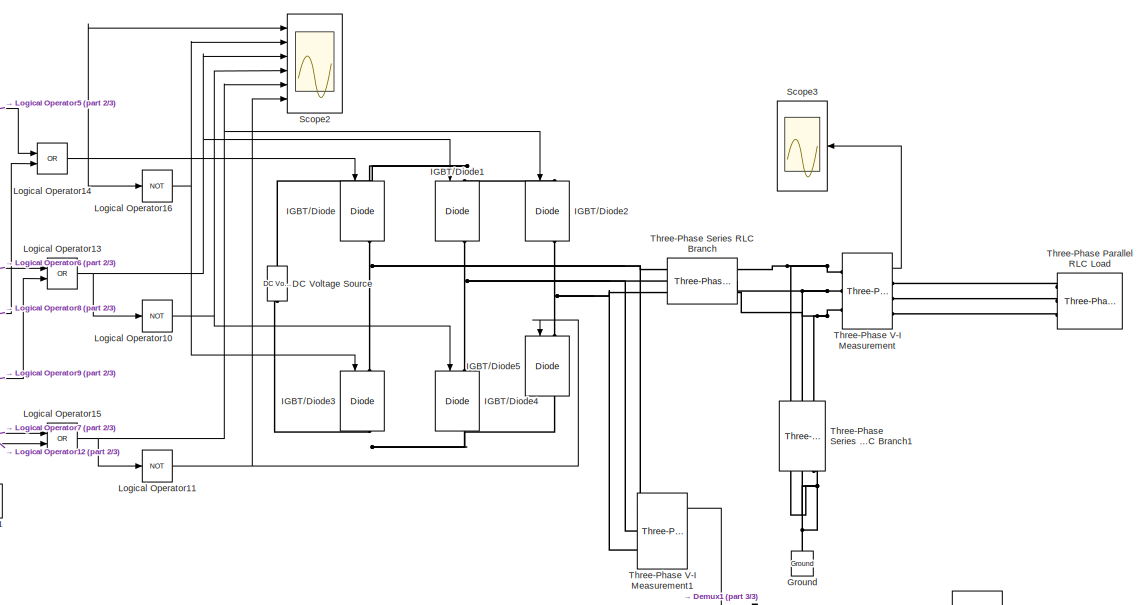
[diagram: root canvas - part 1/3, right side, full height]
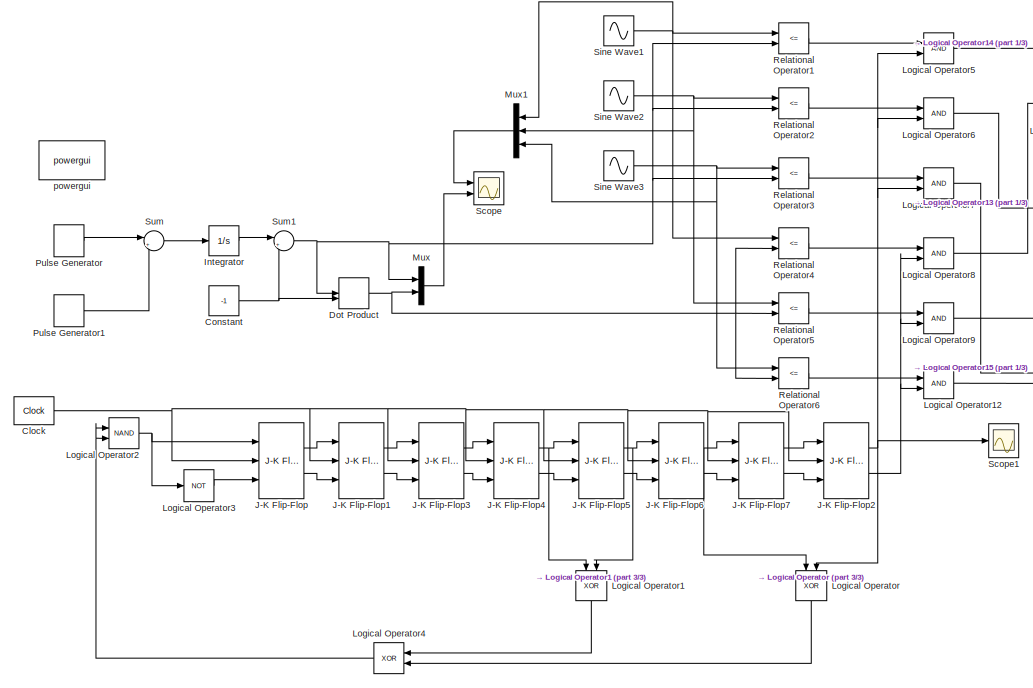
[diagram: root canvas - part 2/3, left side, full height]
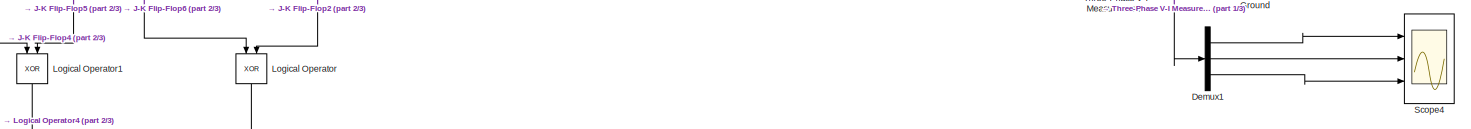
[diagram: root canvas - part 3/3, bottom center region]
MODEL slx_b29a6e259848
KIND model
BLOCK [Reference] Clock  REF=simulink_extras/Flip Flops/Clock
  Ports = [0, 1]
  SourceBlock = simulink_extras/Flip Flops/Clock
  SourceType = Digital clock
  period = 1/(3e3)
BLOCK [Constant] Constant
  Value = -1
BLOCK [Reference] DC Voltage Source  REF=powerlib/Electrical
Sources/DC Voltage Source
  Amplitude = 400
  Measurements = None
  Ports = [0, 0, 0, 0, 0, 1, 1]
  SourceBlock = powerlib/Electrical\nSources/DC Voltage Source
  SourceType = DC Voltage Source
BLOCK [Demux] Demux1
  DisplayOption = bar
  Outputs = 3
  Ports = [1, 3]
BLOCK [DotProduct] Dot Product
  OutDataTypeStr = Inherit: Inherit via internal rule
BLOCK [Reference] Ground  REF=powerlib/Elements/Ground
  LConnTagsString = a
  Ports = [0, 0, 0, 0, 0, 1]
  SourceBlock = powerlib/Elements/Ground
  SourceType = Ground
BLOCK [Reference] IGBT//Diode  REF=powerlib/Power
Electronics/IGBT//Diode
  Cs = inf
  Measurements = on
  Ports = [1, 1, 0, 0, 0, 1, 1]
  Ron = 1e-3
  Rs = 1e5
  SourceBlock = powerlib/Power\nElectronics/IGBT//Diode
  SourceType = IGBT/Diode
BLOCK [Reference] IGBT//Diode1  REF=powerlib/Power
Electronics/IGBT//Diode
  Cs = inf
  Measurements = on
  Ports = [1, 1, 0, 0, 0, 1, 1]
  Ron = 1e-3
  Rs = 1e5
  SourceBlock = powerlib/Power\nElectronics/IGBT//Diode
  SourceType = IGBT/Diode
BLOCK [Reference] IGBT//Diode2  REF=powerlib/Power
Electronics/IGBT//Diode
  Cs = inf
  Measurements = on
  Ports = [1, 1, 0, 0, 0, 1, 1]
  Ron = 1e-3
  Rs = 1e5
  SourceBlock = powerlib/Power\nElectronics/IGBT//Diode
  SourceType = IGBT/Diode
BLOCK [Reference] IGBT//Diode3  REF=powerlib/Power
Electronics/IGBT//Diode
  Cs = inf
  Measurements = on
  Ports = [1, 1, 0, 0, 0, 1, 1]
  Ron = 1e-3
  Rs = 1e5
  SourceBlock = powerlib/Power\nElectronics/IGBT//Diode
  SourceType = IGBT/Diode
BLOCK [Reference] IGBT//Diode4  REF=powerlib/Power
Electronics/IGBT//Diode
  Cs = inf
  Measurements = on
  Ports = [1, 1, 0, 0, 0, 1, 1]
  Ron = 1e-3
  Rs = 1e5
  SourceBlock = powerlib/Power\nElectronics/IGBT//Diode
  SourceType = IGBT/Diode
BLOCK [Reference] IGBT//Diode5  REF=powerlib/Power
Electronics/IGBT//Diode
  Cs = inf
  Measurements = on
  Ports = [1, 1, 0, 0, 0, 1, 1]
  Ron = 1e-3
  Rs = 1e5
  SourceBlock = powerlib/Power\nElectronics/IGBT//Diode
  SourceType = IGBT/Diode
BLOCK [Integrator] Integrator
  Ports = [1, 1]
BLOCK [Reference] J-K Flip-Flop  REF=simulink_extras/Flip Flops/J-K
Flip-Flop
  Ports = [3, 2]
  SourceBlock = simulink_extras/Flip Flops/J-K\nFlip-Flop
  SourceType = JKFlipFlop
  initial_condition = 0
BLOCK [Reference] J-K Flip-Flop1  REF=simulink_extras/Flip Flops/J-K
Flip-Flop
  Ports = [3, 2]
  SourceBlock = simulink_extras/Flip Flops/J-K\nFlip-Flop
  SourceType = JKFlipFlop
  initial_condition = 0
BLOCK [Reference] J-K Flip-Flop2  REF=simulink_extras/Flip Flops/J-K
Flip-Flop
  Ports = [3, 2]
  SourceBlock = simulink_extras/Flip Flops/J-K\nFlip-Flop
  SourceType = JKFlipFlop
  initial_condition = 0
BLOCK [Reference] J-K Flip-Flop3  REF=simulink_extras/Flip Flops/J-K
Flip-Flop
  Ports = [3, 2]
  SourceBlock = simulink_extras/Flip Flops/J-K\nFlip-Flop
  SourceType = JKFlipFlop
  initial_condition = 0
BLOCK [Reference] J-K Flip-Flop4  REF=simulink_extras/Flip Flops/J-K
Flip-Flop
  Ports = [3, 2]
  SourceBlock = simulink_extras/Flip Flops/J-K\nFlip-Flop
  SourceType = JKFlipFlop
  initial_condition = 0
BLOCK [Reference] J-K Flip-Flop5  REF=simulink_extras/Flip Flops/J-K
Flip-Flop
  Ports = [3, 2]
  SourceBlock = simulink_extras/Flip Flops/J-K\nFlip-Flop
  SourceType = JKFlipFlop
  initial_condition = 0
BLOCK [Reference] J-K Flip-Flop6  REF=simulink_extras/Flip Flops/J-K
Flip-Flop
  Ports = [3, 2]
  SourceBlock = simulink_extras/Flip Flops/J-K\nFlip-Flop
  SourceType = JKFlipFlop
  initial_condition = 0
BLOCK [Reference] J-K Flip-Flop7  REF=simulink_extras/Flip Flops/J-K
Flip-Flop
  Ports = [3, 2]
  SourceBlock = simulink_extras/Flip Flops/J-K\nFlip-Flop
  SourceType = JKFlipFlop
  initial_condition = 0
BLOCK [Logic] Logical Operator
  AllPortsSameDT = off
  Operator = XOR
  OutDataTypeStr = boolean
  Ports = [2, 1]
BLOCK [Logic] Logical Operator1
  AllPortsSameDT = off
  Operator = XOR
  OutDataTypeStr = boolean
  Ports = [2, 1]
BLOCK [Logic] Logical Operator10
  AllPortsSameDT = off
  Operator = NOT
  OutDataTypeStr = boolean
  Ports = [1, 1]
BLOCK [Logic] Logical Operator11
  AllPortsSameDT = off
  Operator = NOT
  OutDataTypeStr = boolean
  Ports = [1, 1]
BLOCK [Logic] Logical Operator12
  AllPortsSameDT = off
  OutDataTypeStr = boolean
  Ports = [2, 1]
BLOCK [Logic] Logical Operator13
  AllPortsSameDT = off
  Operator = OR
  OutDataTypeStr = boolean
  Ports = [2, 1]
BLOCK [Logic] Logical Operator14
  AllPortsSameDT = off
  Operator = OR
  OutDataTypeStr = boolean
  Ports = [2, 1]
BLOCK [Logic] Logical Operator15
  AllPortsSameDT = off
  Operator = OR
  OutDataTypeStr = boolean
  Ports = [2, 1]
BLOCK [Logic] Logical Operator16
  AllPortsSameDT = off
  Operator = NOT
  OutDataTypeStr = boolean
  Ports = [1, 1]
BLOCK [Logic] Logical Operator2
  AllPortsSameDT = off
  Operator = NAND
  OutDataTypeStr = boolean
  Ports = [2, 1]
BLOCK [Logic] Logical Operator3
  AllPortsSameDT = off
  Operator = NOT
  OutDataTypeStr = boolean
  Ports = [1, 1]
BLOCK [Logic] Logical Operator4
  AllPortsSameDT = off
  Operator = XOR
  OutDataTypeStr = boolean
  Ports = [2, 1]
BLOCK [Logic] Logical Operator5
  AllPortsSameDT = off
  OutDataTypeStr = boolean
  Ports = [2, 1]
BLOCK [Logic] Logical Operator6
  AllPortsSameDT = off
  OutDataTypeStr = boolean
  Ports = [2, 1]
BLOCK [Logic] Logical Operator7
  AllPortsSameDT = off
  OutDataTypeStr = boolean
  Ports = [2, 1]
BLOCK [Logic] Logical Operator8
  AllPortsSameDT = off
  OutDataTypeStr = boolean
  Ports = [2, 1]
BLOCK [Logic] Logical Operator9
  AllPortsSameDT = off
  OutDataTypeStr = boolean
  Ports = [2, 1]
BLOCK [Mux] Mux
  DisplayOption = bar
  Inputs = 2
  Ports = [2, 1]
BLOCK [Mux] Mux1
  DisplayOption = bar
  Inputs = 3
  Ports = [3, 1]
BLOCK [DiscretePulseGenerator] Pulse Generator
  Amplitude = 12000
  Period = 1e-3/3
  Ports = [0, 1]
  PulseType = Time based
  PulseWidth = 50
BLOCK [DiscretePulseGenerator] Pulse Generator1
  Amplitude = -12000
  Period = 1/3e3
  PhaseDelay = 1/6e3
  Ports = [0, 1]
  PulseType = Time based
  PulseWidth = 50
BLOCK [RelationalOperator] Relational Operator1
  InputSameDT = off
  Operator = <=
  OutDataTypeStr = boolean
  Ports = [2, 1]
BLOCK [RelationalOperator] Relational Operator2
  InputSameDT = off
  Operator = <=
  OutDataTypeStr = boolean
  Ports = [2, 1]
BLOCK [RelationalOperator] Relational Operator3
  InputSameDT = off
  Operator = <=
  OutDataTypeStr = boolean
  Ports = [2, 1]
BLOCK [RelationalOperator] Relational Operator4
  InputSameDT = off
  Operator = <=
  OutDataTypeStr = boolean
  Ports = [2, 1]
BLOCK [RelationalOperator] Relational Operator5
  InputSameDT = off
  Operator = <=
  OutDataTypeStr = boolean
  Ports = [2, 1]
BLOCK [RelationalOperator] Relational Operator6
  InputSameDT = off
  Operator = <=
  OutDataTypeStr = boolean
  Ports = [2, 1]
BLOCK [Scope] Scope
  Floating = off
  NumInputPorts = 2
  Ports = [2]
  ShowLegends = off
  YMax = 1.2~1.2
  YMin = -1.2~-0.2
  ZoomMode = xonly
BLOCK [Scope] Scope1
  Floating = off
  MaxDataPoints = 5000000
  NumInputPorts = 1
  Ports = [1]
  SaveName = ScopeData1
  ShowLegends = off
  YMax = 1.2
  YMin = -1.2
  ZoomMode = xonly
BLOCK [Scope] Scope2
  Floating = off
  NumInputPorts = 6
  Ports = [6]
  SaveName = ScopeData2
  ShowLegends = off
  YMax = 1.2~1.2~1.2~1.2~1.2~1.2
  YMin = -0.2~-0.2~-0.2~-0.2~-0.2~-0.2
  ZoomMode = xonly
BLOCK [Scope] Scope3
  Floating = off
  MaxDataPoints = 500000
  NumInputPorts = 1
  Ports = [1]
  SaveName = ScopeData3
  ShowLegends = off
  YMax = 1.2
  YMin = -0.2
  ZoomMode = xonly
BLOCK [Scope] Scope4
  Floating = off
  MaxDataPoints = 500000
  NumInputPorts = 3
  Ports = [3]
  SaveName = ScopeData4
  ShowLegends = off
  YMax = 1.2~1.2~1.2
  YMin = -0.2~-0.2~-0.2
  ZoomMode = xonly
BLOCK [Sin] Sine Wave1
  Frequency = 314
  Ports = [0, 1]
  SampleTime = 0
BLOCK [Sin] Sine Wave2
  Frequency = 314
  Phase = (2*pi)/3
  Ports = [0, 1]
  SampleTime = 0
BLOCK [Sin] Sine Wave3
  Frequency = 314
  Phase = (4*pi)/3
  Ports = [0, 1]
  SampleTime = 0
BLOCK [Sum] Sum
  IconShape = round
  InputSameDT = off
  Inputs = |++
  OutDataTypeStr = Inherit: Inherit via internal rule
  Ports = [2, 1]
  SaturateOnIntegerOverflow = off
BLOCK [Sum] Sum1
  IconShape = round
  InputSameDT = off
  Inputs = |++
  OutDataTypeStr = Inherit: Inherit via internal rule
  Ports = [2, 1]
  SaturateOnIntegerOverflow = off
BLOCK [Reference] Three-Phase Parallel RLC Load  REF=powerlib/Elements/Three-Phase
Parallel RLC Load
  ActivePower = 1e3
  AttributesFormatString = \n
  CapacitivePower = 0
  Configuration = Y (grounded)
  InductivePower = 0
  LConnTagsString = A|B|C
  LoadType = constant Z
  Measurements = None
  NominalFrequency = 50
  NominalVoltage = 400*1.73
  Ports = [0, 0, 0, 0, 0, 3]
  SourceBlock = powerlib/Elements/Three-Phase\nParallel RLC Load
  SourceType = Three-Phase Parallel RLC Load
BLOCK [Reference] Three-Phase Series RLC Branch  REF=powerlib/Elements/Three-Phase
Series RLC Branch
  AttributesFormatString = \n
  BranchType = L
  Capacitance = 1e-6
  Inductance = 10
  LConnTagsString = A|B|C
  Measurements = None
  Ports = [0, 0, 0, 0, 0, 3, 3]
  RConnTagsString = A|B|C
  Resistance = 1
  SourceBlock = powerlib/Elements/Three-Phase\nSeries RLC Branch
  SourceType = Three-Phase Series RLC Branch
BLOCK [Reference] Three-Phase Series RLC Branch1  REF=powerlib/Elements/Three-Phase
Series RLC Branch
  AttributesFormatString = \n
  BranchType = C
  Capacitance = 1e-6
  Inductance = 10
  LConnTagsString = A|B|C
  Measurements = None
  Ports = [0, 0, 0, 0, 0, 3, 3]
  RConnTagsString = A|B|C
  Resistance = 1
  SourceBlock = powerlib/Elements/Three-Phase\nSeries RLC Branch
  SourceType = Three-Phase Series RLC Branch
BLOCK [Reference] Three-Phase V-I Measurement  REF=powerlib/Measurements/Three-Phase
V-I Measurement
  CurrentMeasurement = no
  Ipu = off
  LabelI = Iabc
  LabelV = Vabc
  OutputType = Complex
  PSBequivalent = 0
  Pbase = 100e6
  PhasorSimulation = off
  Ports = [0, 1, 0, 0, 0, 3, 3]
  SetLabelI = off
  SetLabelV = off
  SourceBlock = powerlib/Measurements/Three-Phase\nV-I Measurement
  SourceType = Three-Phase VI Measurement
  Vbase = 500e3
  VoltageMeasurement = phase-to-phase
  Vpu = off
  VpuLL = off
BLOCK [Reference] Three-Phase V-I Measurement1  REF=powerlib/Measurements/Three-Phase
V-I Measurement
  CurrentMeasurement = no
  Ipu = off
  LabelI = Iabc
  LabelV = Vabc
  OutputType = Complex
  PSBequivalent = 0
  Pbase = 100e6
  PhasorSimulation = off
  Ports = [0, 1, 0, 0, 0, 3, 3]
  SetLabelI = off
  SetLabelV = off
  SourceBlock = powerlib/Measurements/Three-Phase\nV-I Measurement
  SourceType = Three-Phase VI Measurement
  Vbase = 500e3
  VoltageMeasurement = phase-to-phase
  Vpu = off
  VpuLL = off
BLOCK [Reference] powergui  REF=powerlib/powergui
  DisableRonSwitches = off
  DisableSnubberDevices = off
  DisableVfSwitches = off
  DisplayEquations = off
  DisplayStyle = 1
  EnableUseOfTLC = off
  ErrMax = 1e-4
  Frange = [0:2:500]
  FreqAxis = off
  FunctionMessages = off
  HookPort = off
  Interpol = off
  Iterations = 50
  MaxFrequency = 1000
  Pbase = 100e6
  Ports = []
  Priority = 1
  ResistiveCurrentMeasurement = off
  RestoreLinks = warning
  RmsSteady = 1
  SPID = off
  SampleTime = 50e-6
  ShowGrid = off
  SolverType = Tustin
  SourceBlock = powerlib/powergui
  SourceType = PSB option menu block
  StartTime = 0.0
  SwTol = 0
  Ts = 0
  UnitsV = kV
  UnitsW = MW
  UserDataPersistent = on
  Xlog = on
  Ylog = off
  ZoomFFT = off
  cycles = 1
  display = off
  echomessages = off
  frequency = 60
  frequencyindice = 0
  frequencyindicesteady = 1
  fundamental = 60
  methode = off
  save = off
  structure = 0
  variable = ZData
  x0status = blocks
NET Clock:1 -> J-K Flip-Flop1:2, J-K Flip-Flop2:2, J-K Flip-Flop3:2, J-K Flip-Flop4:2, J-K Flip-Flop5:2, J-K Flip-Flop6:2, J-K Flip-Flop7:2, J-K Flip-Flop:2
NET Constant:1 -> Dot Product:2, Sum1:2
LINE Demux1:1 -> Scope4:1
LINE Demux1:2 -> Scope4:2
LINE Demux1:3 -> Scope4:3
NET Dot Product:1 -> Mux:2, Relational Operator4:2, Relational Operator5:2, Relational Operator6:2
LINE Integrator:1 -> Sum1:1
LINE J-K Flip-Flop1:1 -> J-K Flip-Flop3:1
LINE J-K Flip-Flop1:2 -> J-K Flip-Flop3:3
NET J-K Flip-Flop2:1 -> Logical Operator5:2, Logical Operator6:2, Logical Operator7:2, Logical Operator:2, Scope1:1
NET J-K Flip-Flop2:2 -> Logical Operator12:2, Logical Operator8:2, Logical Operator9:2
LINE J-K Flip-Flop3:1 -> J-K Flip-Flop4:1
LINE J-K Flip-Flop3:2 -> J-K Flip-Flop4:3
NET J-K Flip-Flop4:1 -> J-K Flip-Flop5:1, Logical Operator1:1
LINE J-K Flip-Flop4:2 -> J-K Flip-Flop5:3
NET J-K Flip-Flop5:1 -> J-K Flip-Flop6:1, Logical Operator1:2
LINE J-K Flip-Flop5:2 -> J-K Flip-Flop6:3
NET J-K Flip-Flop6:1 -> J-K Flip-Flop7:1, Logical Operator:1
LINE J-K Flip-Flop6:2 -> J-K Flip-Flop7:3
LINE J-K Flip-Flop7:1 -> J-K Flip-Flop2:1
LINE J-K Flip-Flop7:2 -> J-K Flip-Flop2:3
LINE J-K Flip-Flop:1 -> J-K Flip-Flop1:1
LINE J-K Flip-Flop:2 -> J-K Flip-Flop1:3
NET Logical Operator10:1 -> IGBT//Diode4:1, Scope2:4
NET Logical Operator11:1 -> IGBT//Diode5:1, Scope2:6
LINE Logical Operator12:1 -> Logical Operator15:2
NET Logical Operator13:1 -> IGBT//Diode1:1, Logical Operator10:1, Scope2:3
NET Logical Operator14:1 -> IGBT//Diode:1, Logical Operator16:1, Scope2:1
NET Logical Operator15:1 -> IGBT//Diode2:1, Logical Operator11:1, Scope2:5
NET Logical Operator16:1 -> IGBT//Diode3:1, Scope2:2
LINE Logical Operator1:1 -> Logical Operator4:1
NET Logical Operator2:1 -> J-K Flip-Flop:1, Logical Operator3:1
LINE Logical Operator3:1 -> J-K Flip-Flop:3
NET Logical Operator4:1 -> Logical Operator2:1, Logical Operator2:2
LINE Logical Operator5:1 -> Logical Operator14:1
LINE Logical Operator6:1 -> Logical Operator13:1
LINE Logical Operator7:1 -> Logical Operator15:1
LINE Logical Operator8:1 -> Logical Operator14:2
LINE Logical Operator9:1 -> Logical Operator13:2
LINE Logical Operator:1 -> Logical Operator4:2
LINE Mux1:1 -> Scope:1
LINE Mux:1 -> Scope:2
LINE Pulse Generator1:1 -> Sum:2
LINE Pulse Generator:1 -> Sum:1
LINE Relational Operator1:1 -> Logical Operator5:1
LINE Relational Operator2:1 -> Logical Operator6:1
LINE Relational Operator3:1 -> Logical Operator7:1
LINE Relational Operator4:1 -> Logical Operator8:1
LINE Relational Operator5:1 -> Logical Operator9:1
LINE Relational Operator6:1 -> Logical Operator12:1
NET Sine Wave1:1 -> Mux1:1, Relational Operator1:1, Relational Operator4:1
NET Sine Wave2:1 -> Mux1:2, Relational Operator2:1, Relational Operator5:1
NET Sine Wave3:1 -> Mux1:3, Relational Operator3:1, Relational Operator6:1
NET Sum1:1 -> Dot Product:1, Mux:1, Relational Operator1:2, Relational Operator2:2, Relational Operator3:2
LINE Sum:1 -> Integrator:1
LINE Three-Phase V-I Measurement1:1 -> Demux1:1
LINE Three-Phase V-I Measurement:1 -> Scope3:1
PNET net1: DC Voltage Source:LConn1 -- IGBT//Diode3:RConn1 -- IGBT//Diode4:RConn1 -- IGBT//Diode5:RConn1
PNET net2: DC Voltage Source:RConn1 -- IGBT//Diode1:LConn1 -- IGBT//Diode2:LConn1 -- IGBT//Diode:LConn1
PNET net3: Ground:LConn1 -- Three-Phase Series RLC Branch1:RConn1 -- Three-Phase Series RLC Branch1:RConn2 -- Three-Phase Series RLC Branch1:RConn3
PNET net4: IGBT//Diode1:RConn1 -- IGBT//Diode4:LConn1 -- Three-Phase Series RLC Branch:LConn2 -- Three-Phase V-I Measurement1:LConn2
PNET net5: IGBT//Diode2:RConn1 -- IGBT//Diode5:LConn1 -- Three-Phase Series RLC Branch:LConn3 -- Three-Phase V-I Measurement1:LConn3
PNET net6: IGBT//Diode3:LConn1 -- IGBT//Diode:RConn1 -- Three-Phase Series RLC Branch:LConn1 -- Three-Phase V-I Measurement1:LConn1
PLINE Three-Phase Parallel RLC Load:LConn1 -- Three-Phase V-I Measurement:RConn1
PLINE Three-Phase Parallel RLC Load:LConn2 -- Three-Phase V-I Measurement:RConn2
PLINE Three-Phase Parallel RLC Load:LConn3 -- Three-Phase V-I Measurement:RConn3
PNET net7: Three-Phase Series RLC Branch1:LConn1 -- Three-Phase Series RLC Branch:RConn1 -- Three-Phase V-I Measurement:LConn1
PNET net8: Three-Phase Series RLC Branch1:LConn2 -- Three-Phase Series RLC Branch:RConn2 -- Three-Phase V-I Measurement:LConn2
PNET net9: Three-Phase Series RLC Branch1:LConn3 -- Three-Phase Series RLC Branch:RConn3 -- Three-Phase V-I Measurement:LConn3
note: NET lines group one-source signal fan-out (src -> all destinations, sorted); 1:1 wires keep LINE; PNET lines group multi-terminal physical nets as a canonical sorted terminal list (undirected conserving connections); 2-terminal nets keep the pairwise PLINE form
